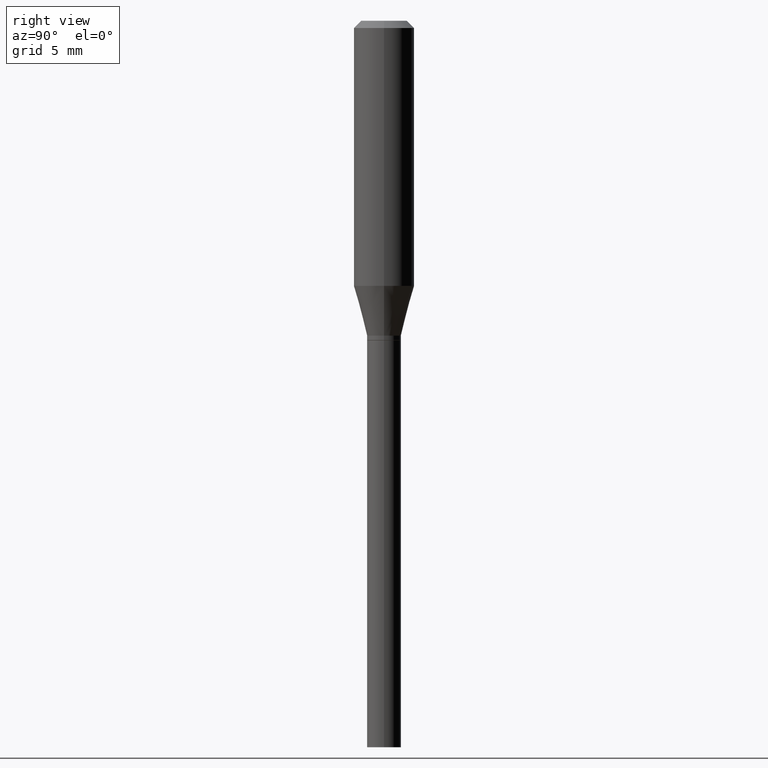
[diagram: clean part render]
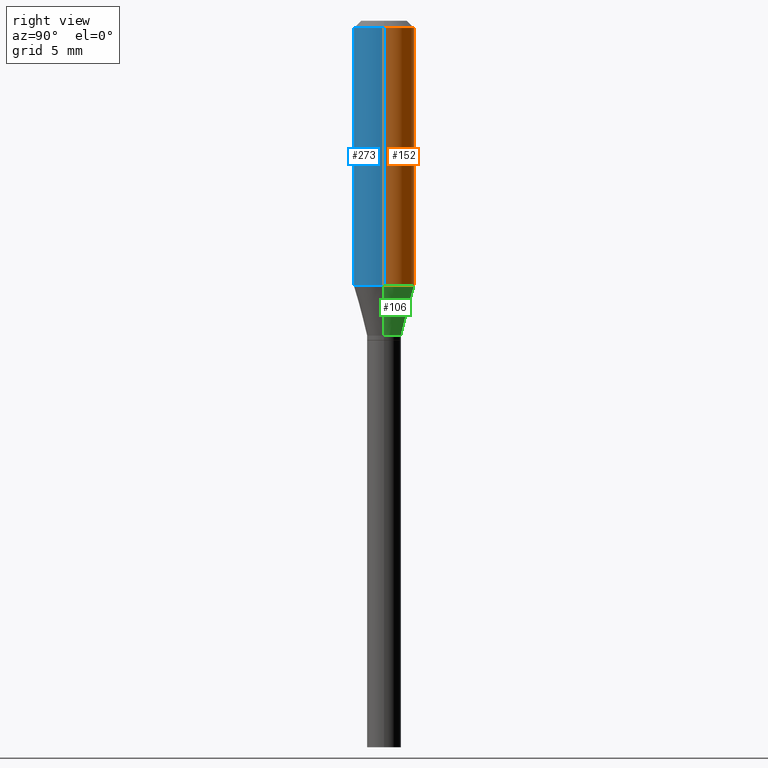
[diagram: same view with three faces highlighted in distinct colors, each labeled with its STEP entity id]
A machine part, right view with three faces highlighted in distinct colors.
Their STEP definitions:

[orange] entity #152 — the highlighted cylindrical surface (edge-blend (fillet) strip) has radius 1.5875 mm, axis along (-0, 0, 1).
#2 = VERTEX_POINT ( 'NONE', #246 ) ;
#3 = VECTOR ( 'NONE', #128, 39.37007874015748143 ) ;
#19 = DIRECTION ( 'NONE',  ( -2.445468806185136597E-29, 3.491481338843145583E-15, 1.000000000000000000 ) ) ;
#43 = CYLINDRICAL_SURFACE ( 'NONE', #120, 0.06250000000000000000 ) ;
#53 = CARTESIAN_POINT ( 'NONE',  ( 0.06250000000000000000, -4.364351673553916694E-16, 3.047610484872459871E-30 ) ) ;
#91 = CARTESIAN_POINT ( 'NONE',  ( 3.668203209277705088E-31, -5.237222008264718399E-17, -0.01499999999999999944 ) ) ;
#112 = DIRECTION ( 'NONE',  ( -2.445468806185136597E-29, 3.491481338843145583E-15, 1.000000000000000000 ) ) ;
#120 = AXIS2_PLACEMENT_3D ( 'NONE', #299, #112, #229 ) ;
#128 = DIRECTION ( 'NONE',  ( -2.445468806185136877E-29, 3.491481338843145188E-15, 1.000000000000000000 ) ) ;
#143 = VERTEX_POINT ( 'NONE', #437 ) ;
#152 = ADVANCED_FACE ( 'NONE', ( #337 ), #43, .T. ) ;
#160 = VECTOR ( 'NONE', #384, 39.37007874015748143 ) ;
#162 = CARTESIAN_POINT ( 'NONE',  ( 1.338572843612629275E-29, -1.911127262116415256E-15, -0.5473686027918571728 ) ) ;
#192 = ORIENTED_EDGE ( 'NONE', *, *, #260, .T. ) ;
#199 = EDGE_CURVE ( 'NONE', #2, #143, #240, .T. ) ;
#201 = CARTESIAN_POINT ( 'NONE',  ( -0.06250000000000000000, -5.376605312494687485E-16, -0.01499999999999999944 ) ) ;
#219 = ORIENTED_EDGE ( 'NONE', *, *, #199, .F. ) ;
#229 = DIRECTION ( 'NONE',  ( 1.000000000000000000, -6.982962677686266711E-15, 4.876176775795935793E-29 ) ) ;
#240 = LINE ( 'NONE', #53, #160 ) ;
#246 = CARTESIAN_POINT ( 'NONE',  ( 0.06250000000000000000, -2.347562429471806531E-15, -0.5473686027918571728 ) ) ;
#248 = VERTEX_POINT ( 'NONE', #201 ) ;
#255 = CIRCLE ( 'NONE', #421, 0.06250000000000000000 ) ;
#260 = EDGE_CURVE ( 'NONE', #2, #300, #255, .T. ) ;
#261 = ORIENTED_EDGE ( 'NONE', *, *, #405, .F. ) ;
#269 = EDGE_CURVE ( 'NONE', #300, #248, #352, .T. ) ;
#283 = CIRCLE ( 'NONE', #346, 0.06250000000000000000 ) ;
#299 = CARTESIAN_POINT ( 'NONE',  ( 0.000000000000000000, 0.000000000000000000, 0.000000000000000000 ) ) ;
#300 = VERTEX_POINT ( 'NONE', #414 ) ;
#337 = FACE_OUTER_BOUND ( 'NONE', #392, .T. ) ;
#346 = AXIS2_PLACEMENT_3D ( 'NONE', #91, #19, #393 ) ;
#348 = DIRECTION ( 'NONE',  ( 1.000000000000000000, -6.982962677686266711E-15, 0.000000000000000000 ) ) ;
#350 = DIRECTION ( 'NONE',  ( -2.445468806185136597E-29, 3.491481338843145583E-15, 1.000000000000000000 ) ) ;
#352 = LINE ( 'NONE', #447, #3 ) ;
#384 = DIRECTION ( 'NONE',  ( -2.445468806185136877E-29, 3.491481338843145188E-15, 1.000000000000000000 ) ) ;
#392 = EDGE_LOOP ( 'NONE', ( #192, #453, #261, #219 ) ) ;
#393 = DIRECTION ( 'NONE',  ( 1.000000000000000000, -6.982962677686266711E-15, 0.000000000000000000 ) ) ;
#405 = EDGE_CURVE ( 'NONE', #143, #248, #283, .T. ) ;
#414 = CARTESIAN_POINT ( 'NONE',  ( -0.06250000000000000000, -1.467038052266352442E-15, -0.5473686027918571728 ) ) ;
#421 = AXIS2_PLACEMENT_3D ( 'NONE', #162, #350, #348 ) ;
#437 = CARTESIAN_POINT ( 'NONE',  ( 0.06250000000000000000, -4.888073874380388472E-16, -0.01499999999999999944 ) ) ;
#447 = CARTESIAN_POINT ( 'NONE',  ( -0.06250000000000000000, 4.440892098500626162E-16, -3.074334431409316114E-30 ) ) ;
#453 = ORIENTED_EDGE ( 'NONE', *, *, #269, .T. ) ;

[blue] entity #273 — the highlighted cylindrical surface (edge-blend (fillet) strip) has radius 1.5875 mm, axis along (-0, 0, 1).
#2 = VERTEX_POINT ( 'NONE', #246 ) ;
#3 = VECTOR ( 'NONE', #128, 39.37007874015748143 ) ;
#12 = DIRECTION ( 'NONE',  ( 1.000000000000000000, -6.982962677686266711E-15, 4.876176775795935793E-29 ) ) ;
#14 = DIRECTION ( 'NONE',  ( 1.000000000000000000, -6.982962677686266711E-15, 0.000000000000000000 ) ) ;
#47 = CARTESIAN_POINT ( 'NONE',  ( 3.668203209277705088E-31, -5.237222008264718399E-17, -0.01499999999999999944 ) ) ;
#53 = CARTESIAN_POINT ( 'NONE',  ( 0.06250000000000000000, -4.364351673553916694E-16, 3.047610484872459871E-30 ) ) ;
#65 = DIRECTION ( 'NONE',  ( 1.000000000000000000, -6.982962677686266711E-15, 0.000000000000000000 ) ) ;
#99 = CARTESIAN_POINT ( 'NONE',  ( 1.338572843612629275E-29, -1.911127262116415256E-15, -0.5473686027918571728 ) ) ;
#123 = DIRECTION ( 'NONE',  ( -2.445468806185136597E-29, 3.491481338843145583E-15, 1.000000000000000000 ) ) ;
#128 = DIRECTION ( 'NONE',  ( -2.445468806185136877E-29, 3.491481338843145188E-15, 1.000000000000000000 ) ) ;
#132 = EDGE_CURVE ( 'NONE', #300, #2, #410, .T. ) ;
#143 = VERTEX_POINT ( 'NONE', #437 ) ;
#154 = AXIS2_PLACEMENT_3D ( 'NONE', #311, #123, #12 ) ;
#160 = VECTOR ( 'NONE', #384, 39.37007874015748143 ) ;
#185 = ORIENTED_EDGE ( 'NONE', *, *, #239, .F. ) ;
#188 = CIRCLE ( 'NONE', #237, 0.06250000000000000000 ) ;
#199 = EDGE_CURVE ( 'NONE', #2, #143, #240, .T. ) ;
#201 = CARTESIAN_POINT ( 'NONE',  ( -0.06250000000000000000, -5.376605312494687485E-16, -0.01499999999999999944 ) ) ;
#202 = AXIS2_PLACEMENT_3D ( 'NONE', #99, #394, #65 ) ;
#206 = DIRECTION ( 'NONE',  ( -2.445468806185136597E-29, 3.491481338843145583E-15, 1.000000000000000000 ) ) ;
#237 = AXIS2_PLACEMENT_3D ( 'NONE', #47, #206, #14 ) ;
#239 = EDGE_CURVE ( 'NONE', #248, #143, #188, .T. ) ;
#240 = LINE ( 'NONE', #53, #160 ) ;
#246 = CARTESIAN_POINT ( 'NONE',  ( 0.06250000000000000000, -2.347562429471806531E-15, -0.5473686027918571728 ) ) ;
#248 = VERTEX_POINT ( 'NONE', #201 ) ;
#269 = EDGE_CURVE ( 'NONE', #300, #248, #352, .T. ) ;
#273 = ADVANCED_FACE ( 'NONE', ( #443 ), #445, .T. ) ;
#287 = ORIENTED_EDGE ( 'NONE', *, *, #132, .T. ) ;
#294 = ORIENTED_EDGE ( 'NONE', *, *, #199, .T. ) ;
#300 = VERTEX_POINT ( 'NONE', #414 ) ;
#311 = CARTESIAN_POINT ( 'NONE',  ( 0.000000000000000000, 0.000000000000000000, 0.000000000000000000 ) ) ;
#352 = LINE ( 'NONE', #447, #3 ) ;
#384 = DIRECTION ( 'NONE',  ( -2.445468806185136877E-29, 3.491481338843145188E-15, 1.000000000000000000 ) ) ;
#394 = DIRECTION ( 'NONE',  ( -2.445468806185136597E-29, 3.491481338843145583E-15, 1.000000000000000000 ) ) ;
#410 = CIRCLE ( 'NONE', #202, 0.06250000000000000000 ) ;
#414 = CARTESIAN_POINT ( 'NONE',  ( -0.06250000000000000000, -1.467038052266352442E-15, -0.5473686027918571728 ) ) ;
#437 = CARTESIAN_POINT ( 'NONE',  ( 0.06250000000000000000, -4.888073874380388472E-16, -0.01499999999999999944 ) ) ;
#439 = EDGE_LOOP ( 'NONE', ( #440, #287, #294, #185 ) ) ;
#440 = ORIENTED_EDGE ( 'NONE', *, *, #269, .F. ) ;
#443 = FACE_OUTER_BOUND ( 'NONE', #439, .T. ) ;
#445 = CYLINDRICAL_SURFACE ( 'NONE', #154, 0.06250000000000000000 ) ;
#447 = CARTESIAN_POINT ( 'NONE',  ( -0.06250000000000000000, 4.440892098500626162E-16, -3.074334431409316114E-30 ) ) ;

[green] entity #106 — the highlighted conical surface has half-angle 15 deg.
#2 = VERTEX_POINT ( 'NONE', #246 ) ;
#46 = CARTESIAN_POINT ( 'NONE',  ( -0.03500000000000020456, -1.743905482499180370E-15, -0.6500000000000001332 ) ) ;
#77 = VECTOR ( 'NONE', #400, 39.37007874015748143 ) ;
#82 = VECTOR ( 'NONE', #86, 39.37007874015748143 ) ;
#86 = DIRECTION ( 'NONE',  ( -0.2588190451025215721, 5.211531920934551831E-15, 0.9659258262890679791 ) ) ;
#98 = VERTEX_POINT ( 'NONE', #105 ) ;
#105 = CARTESIAN_POINT ( 'NONE',  ( 0.03500000000000020456, -2.513866563967065719E-15, -0.6500000000000001332 ) ) ;
#106 = ADVANCED_FACE ( 'NONE', ( #221 ), #135, .T. ) ;
#108 = ORIENTED_EDGE ( 'NONE', *, *, #312, .T. ) ;
#115 = ORIENTED_EDGE ( 'NONE', *, *, #449, .F. ) ;
#135 = CONICAL_SURFACE ( 'NONE', #167, 0.03500000000000020456, 0.2617993877991502960 ) ;
#156 = CARTESIAN_POINT ( 'NONE',  ( -0.03500000000000020456, -2.020772912732008495E-15, -0.6500000000000001332 ) ) ;
#162 = CARTESIAN_POINT ( 'NONE',  ( 1.338572843612629275E-29, -1.911127262116415256E-15, -0.5473686027918571728 ) ) ;
#167 = AXIS2_PLACEMENT_3D ( 'NONE', #460, #288, #425 ) ;
#196 = CIRCLE ( 'NONE', #415, 0.03500000000000020456 ) ;
#211 = CARTESIAN_POINT ( 'NONE',  ( 0.03500000000000020456, -2.513866563967065719E-15, -0.6500000000000001332 ) ) ;
#221 = FACE_OUTER_BOUND ( 'NONE', #340, .T. ) ;
#246 = CARTESIAN_POINT ( 'NONE',  ( 0.06250000000000000000, -2.347562429471806531E-15, -0.5473686027918571728 ) ) ;
#255 = CIRCLE ( 'NONE', #421, 0.06250000000000000000 ) ;
#260 = EDGE_CURVE ( 'NONE', #2, #300, #255, .T. ) ;
#266 = VERTEX_POINT ( 'NONE', #46 ) ;
#270 = DIRECTION ( 'NONE',  ( -2.445468806185136597E-29, 3.491481338843145583E-15, 1.000000000000000000 ) ) ;
#271 = CARTESIAN_POINT ( 'NONE',  ( 1.589554724020339236E-29, -2.269462870248044964E-15, -0.6500000000000001332 ) ) ;
#288 = DIRECTION ( 'NONE',  ( -2.445468806185136597E-29, 3.491481338843145583E-15, 1.000000000000000000 ) ) ;
#297 = EDGE_CURVE ( 'NONE', #98, #266, #196, .T. ) ;
#300 = VERTEX_POINT ( 'NONE', #414 ) ;
#312 = EDGE_CURVE ( 'NONE', #266, #300, #417, .T. ) ;
#313 = DIRECTION ( 'NONE',  ( 1.000000000000000000, -6.982962677686263555E-15, 0.000000000000000000 ) ) ;
#340 = EDGE_LOOP ( 'NONE', ( #371, #108, #407, #115 ) ) ;
#348 = DIRECTION ( 'NONE',  ( 1.000000000000000000, -6.982962677686266711E-15, 0.000000000000000000 ) ) ;
#350 = DIRECTION ( 'NONE',  ( -2.445468806185136597E-29, 3.491481338843145583E-15, 1.000000000000000000 ) ) ;
#371 = ORIENTED_EDGE ( 'NONE', *, *, #297, .T. ) ;
#400 = DIRECTION ( 'NONE',  ( 0.2588190451025215721, 1.565188264969619995E-15, 0.9659258262890679791 ) ) ;
#407 = ORIENTED_EDGE ( 'NONE', *, *, #260, .F. ) ;
#414 = CARTESIAN_POINT ( 'NONE',  ( -0.06250000000000000000, -1.467038052266352442E-15, -0.5473686027918571728 ) ) ;
#415 = AXIS2_PLACEMENT_3D ( 'NONE', #271, #270, #313 ) ;
#417 = LINE ( 'NONE', #156, #82 ) ;
#421 = AXIS2_PLACEMENT_3D ( 'NONE', #162, #350, #348 ) ;
#425 = DIRECTION ( 'NONE',  ( 1.000000000000000000, -6.982962677686263555E-15, 0.000000000000000000 ) ) ;
#449 = EDGE_CURVE ( 'NONE', #98, #2, #457, .T. ) ;
#457 = LINE ( 'NONE', #211, #77 ) ;
#460 = CARTESIAN_POINT ( 'NONE',  ( 1.589554724020339236E-29, -2.269462870248044964E-15, -0.6500000000000001332 ) ) ;